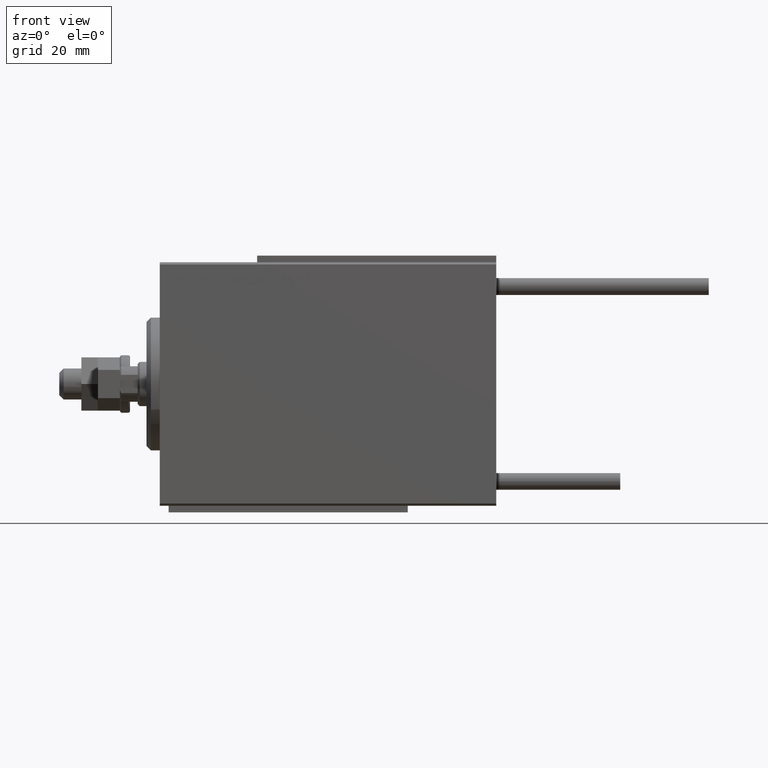
[diagram: clean part render]
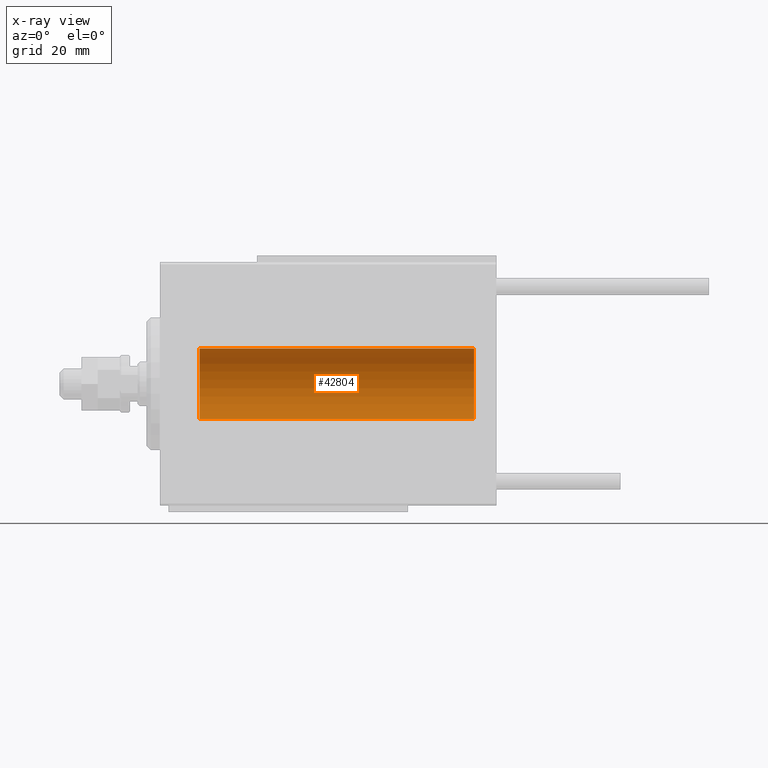
[diagram: x-ray — body ghosted, one internal face saturated and labeled with its STEP entity id]
A machine part, front view, then the same camera in x-ray: the body is ghosted and one INTERNAL B-rep face — a face not visible from any outside direction — is saturated and labeled: STEP entity #42804.
In plain terms, the highlighted cylindrical surface (edge-blend (fillet) strip) has radius 8 mm, axis along (-1, -0, -0).
Its self-contained STEP definition (entity closure, byte-faithful):
#465 = DIRECTION ( 'NONE',  ( -1.000000000000000000, -0.000000000000000000, -0.000000000000000000 ) ) ;
#1629 = DIRECTION ( 'NONE',  ( -1.000000000000000000, -0.000000000000000000, -0.000000000000000000 ) ) ;
#3153 = ORIENTED_EDGE ( 'NONE', *, *, #17879, .T. ) ;
#4766 = DIRECTION ( 'NONE',  ( 0.000000000000000000, 0.000000000000000000, 1.000000000000000000 ) ) ;
#5890 = ORIENTED_EDGE ( 'NONE', *, *, #45808, .F. ) ;
#7439 = VECTOR ( 'NONE', #40435, 1000.000000000000000 ) ;
#8878 = EDGE_CURVE ( 'NONE', #23736, #47317, #44573, .T. ) ;
#13036 = VERTEX_POINT ( 'NONE', #33771 ) ;
#17100 = CYLINDRICAL_SURFACE ( 'NONE', #30585, 7.999999999999998224 ) ;
#17879 = EDGE_CURVE ( 'NONE', #26271, #13036, #46159, .T. ) ;
#18217 = DIRECTION ( 'NONE',  ( 0.000000000000000000, 0.000000000000000000, 1.000000000000000000 ) ) ;
#23049 = LINE ( 'NONE', #42557, #46251 ) ;
#23736 = VERTEX_POINT ( 'NONE', #27849 ) ;
#24042 = DIRECTION ( 'NONE',  ( -1.000000000000000000, 0.000000000000000000, 0.000000000000000000 ) ) ;
#26271 = VERTEX_POINT ( 'NONE', #44071 ) ;
#27849 = CARTESIAN_POINT ( 'NONE',  ( 71.00000000000000000, 0.000000000000000000, 7.999999999999998224 ) ) ;
#29274 = CARTESIAN_POINT ( 'NONE',  ( 71.00000000000000000, 0.000000000000000000, 7.999999999999998224 ) ) ;
#30585 = AXIS2_PLACEMENT_3D ( 'NONE', #47764, #1629, #43705 ) ;
#32409 = AXIS2_PLACEMENT_3D ( 'NONE', #49638, #37968, #18217 ) ;
#32908 = CARTESIAN_POINT ( 'NONE',  ( 71.00000000000000000, 0.000000000000000000, 0.000000000000000000 ) ) ;
#33771 = CARTESIAN_POINT ( 'NONE',  ( 9.000000000000001776, 9.797174393178823685E-16, -7.999999999999998224 ) ) ;
#33918 = ORIENTED_EDGE ( 'NONE', *, *, #8878, .F. ) ;
#35181 = EDGE_LOOP ( 'NONE', ( #5890, #33918, #45086, #3153 ) ) ;
#37968 = DIRECTION ( 'NONE',  ( -1.000000000000000000, 0.000000000000000000, 0.000000000000000000 ) ) ;
#40189 = CARTESIAN_POINT ( 'NONE',  ( 71.00000000000000000, 9.797174393178823685E-16, -7.999999999999998224 ) ) ;
#40435 = DIRECTION ( 'NONE',  ( -1.000000000000000000, -0.000000000000000000, -0.000000000000000000 ) ) ;
#40698 = LINE ( 'NONE', #29274, #7439 ) ;
#42557 = CARTESIAN_POINT ( 'NONE',  ( 71.00000000000000000, 9.797174393178823685E-16, -7.999999999999998224 ) ) ;
#42804 = ADVANCED_FACE ( 'NONE', ( #47508 ), #17100, .F. ) ;
#43705 = DIRECTION ( 'NONE',  ( 0.000000000000000000, 0.000000000000000000, 1.000000000000000000 ) ) ;
#44071 = CARTESIAN_POINT ( 'NONE',  ( 9.000000000000001776, 0.000000000000000000, 7.999999999999998224 ) ) ;
#44573 = CIRCLE ( 'NONE', #46984, 7.999999999999998224 ) ;
#45086 = ORIENTED_EDGE ( 'NONE', *, *, #46755, .T. ) ;
#45808 = EDGE_CURVE ( 'NONE', #47317, #13036, #23049, .T. ) ;
#46159 = CIRCLE ( 'NONE', #32409, 7.999999999999998224 ) ;
#46251 = VECTOR ( 'NONE', #465, 1000.000000000000000 ) ;
#46755 = EDGE_CURVE ( 'NONE', #23736, #26271, #40698, .T. ) ;
#46984 = AXIS2_PLACEMENT_3D ( 'NONE', #32908, #24042, #4766 ) ;
#47317 = VERTEX_POINT ( 'NONE', #40189 ) ;
#47508 = FACE_OUTER_BOUND ( 'NONE', #35181, .T. ) ;
#47764 = CARTESIAN_POINT ( 'NONE',  ( 71.00000000000000000, 0.000000000000000000, 0.000000000000000000 ) ) ;
#49638 = CARTESIAN_POINT ( 'NONE',  ( 9.000000000000001776, 0.000000000000000000, 0.000000000000000000 ) ) ;